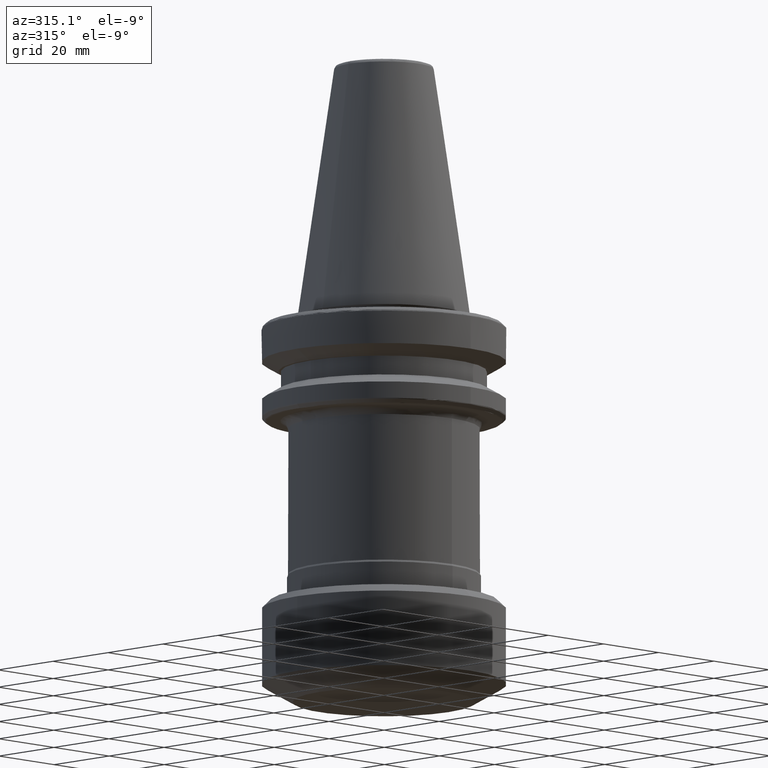
[diagram: clean part render]
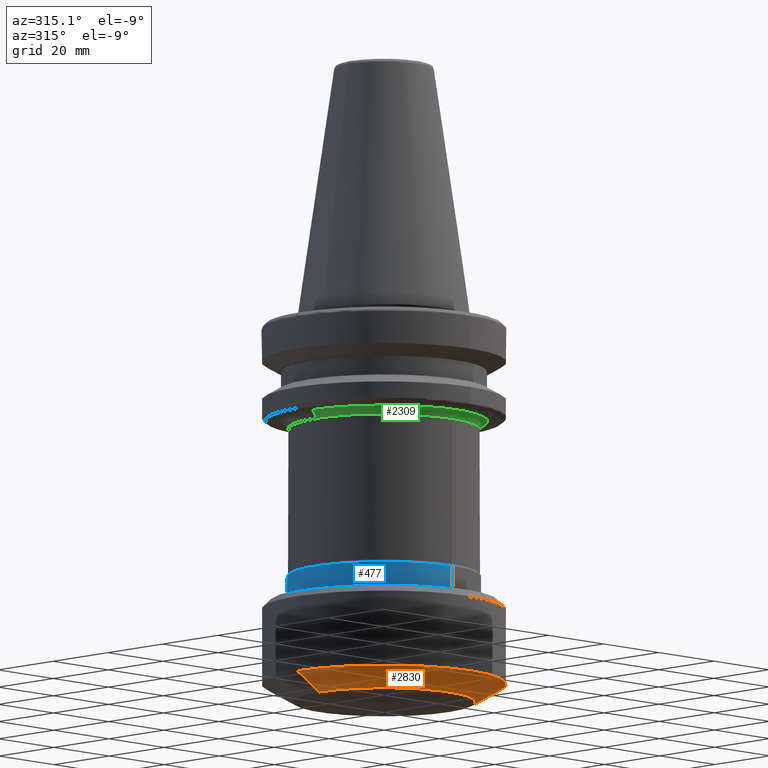
[diagram: same view with three faces highlighted in distinct colors, each labeled with its STEP entity id]
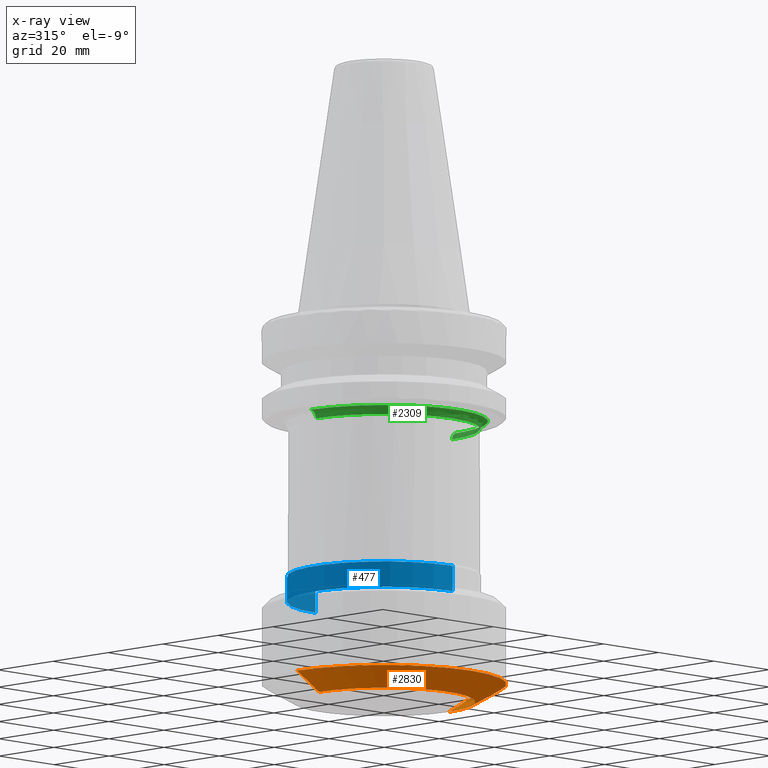
[diagram: x-ray of the same camera — body ghosted, the three highlighted faces saturated]
A machine part, auxiliary view with three faces highlighted in distinct colors.
The next image is the same camera in x-ray (body ghosted, the three faces saturated) — at least one of them is partly hidden behind the body in this view.
Their STEP definitions:

[orange] entity #2830 — the highlighted conical surface has half-angle 60 deg.
#155 = DIRECTION ( 'NONE',  ( 0.8660254037617976000, 0.0000000000000000000, 0.5000000000392153000 ) ) ;
#161 = VECTOR ( 'NONE', #1212, 1000.000000000000100 ) ;
#386 = DIRECTION ( 'NONE',  ( 1.000000000000000000, 0.0000000000000000000, 0.0000000000000000000 ) ) ;
#448 = EDGE_CURVE ( 'NONE', #1052, #3277, #2480, .T. ) ;
#502 = VERTEX_POINT ( 'NONE', #2284 ) ;
#597 = EDGE_CURVE ( 'NONE', #502, #1052, #2310, .T. ) ;
#681 = CIRCLE ( 'NONE', #1990, 23.49999999999985400 ) ;
#701 = CARTESIAN_POINT ( 'NONE',  ( 0.0000000000000000000, 0.0000000000000000000, -95.38119784599996400 ) ) ;
#844 = ORIENTED_EDGE ( 'NONE', *, *, #448, .F. ) ;
#856 = EDGE_LOOP ( 'NONE', ( #2403, #1516, #3264, #844 ) ) ;
#969 = DIRECTION ( 'NONE',  ( 1.000000000000000000, 0.0000000000000000000, -8.811293846231401400E-016 ) ) ;
#1048 = CARTESIAN_POINT ( 'NONE',  ( -31.50000000000000000, 3.857637417314162700E-015, -95.38119784599996400 ) ) ;
#1052 = VERTEX_POINT ( 'NONE', #1048 ) ;
#1150 = CARTESIAN_POINT ( 'NONE',  ( 23.49999999999985400, 0.0000000000000000000, -100.0000000000000900 ) ) ;
#1212 = DIRECTION ( 'NONE',  ( -0.8660254037617976000, 1.060575238697179600E-016, 0.5000000000392153000 ) ) ;
#1516 = ORIENTED_EDGE ( 'NONE', *, *, #1706, .F. ) ;
#1557 = DIRECTION ( 'NONE',  ( -0.0000000000000000000, 0.0000000000000000000, -1.000000000000000000 ) ) ;
#1706 = EDGE_CURVE ( 'NONE', #2201, #502, #681, .T. ) ;
#1757 = CARTESIAN_POINT ( 'NONE',  ( 31.50000000000000000, 0.0000000000000000000, -95.38119784599999200 ) ) ;
#1845 = AXIS2_PLACEMENT_3D ( 'NONE', #701, #2573, #969 ) ;
#1903 = CONICAL_SURFACE ( 'NONE', #3034, 23.50000000000000000, 1.047197551151315900 ) ;
#1990 = AXIS2_PLACEMENT_3D ( 'NONE', #3152, #1557, #3424 ) ;
#1999 = CARTESIAN_POINT ( 'NONE',  ( 0.0000000000000000000, 0.0000000000000000000, -100.0000000000000000 ) ) ;
#2030 = VECTOR ( 'NONE', #155, 1000.000000000000100 ) ;
#2201 = VERTEX_POINT ( 'NONE', #1150 ) ;
#2284 = CARTESIAN_POINT ( 'NONE',  ( -23.49999999999985400, 3.367778697655202000E-015, -100.0000000000000900 ) ) ;
#2296 = CARTESIAN_POINT ( 'NONE',  ( -23.50000000000000000, 2.877919977996280300E-015, -100.0000000000000000 ) ) ;
#2310 = LINE ( 'NONE', #2296, #161 ) ;
#2403 = ORIENTED_EDGE ( 'NONE', *, *, #597, .F. ) ;
#2480 = CIRCLE ( 'NONE', #1845, 31.50000000000000000 ) ;
#2573 = DIRECTION ( 'NONE',  ( 0.0000000000000000000, 0.0000000000000000000, 1.000000000000000000 ) ) ;
#2696 = FACE_OUTER_BOUND ( 'NONE', #856, .T. ) ;
#2735 = LINE ( 'NONE', #2829, #2030 ) ;
#2829 = CARTESIAN_POINT ( 'NONE',  ( 23.50000000000000000, 0.0000000000000000000, -100.0000000000000000 ) ) ;
#2830 = ADVANCED_FACE ( 'NONE', ( #2696 ), #1903, .T. ) ;
#3034 = AXIS2_PLACEMENT_3D ( 'NONE', #1999, #3325, #386 ) ;
#3152 = CARTESIAN_POINT ( 'NONE',  ( 0.0000000000000000000, 0.0000000000000000000, -100.0000000000000900 ) ) ;
#3264 = ORIENTED_EDGE ( 'NONE', *, *, #3291, .T. ) ;
#3277 = VERTEX_POINT ( 'NONE', #1757 ) ;
#3291 = EDGE_CURVE ( 'NONE', #2201, #3277, #2735, .T. ) ;
#3325 = DIRECTION ( 'NONE',  ( 0.0000000000000000000, -0.0000000000000000000, 1.000000000000000000 ) ) ;
#3424 = DIRECTION ( 'NONE',  ( 1.000000000000000000, 0.0000000000000000000, 0.0000000000000000000 ) ) ;

[blue] entity #477 — the highlighted cylindrical surface (partial cylindrical patch) has radius 24.95 mm, axis along (0, -0, 1).
#57 = ORIENTED_EDGE ( 'NONE', *, *, #519, .F. ) ;
#78 = VERTEX_POINT ( 'NONE', #522 ) ;
#116 = VERTEX_POINT ( 'NONE', #3363 ) ;
#165 = EDGE_LOOP ( 'NONE', ( #57, #2723, #1683, #2285 ) ) ;
#179 = DIRECTION ( 'NONE',  ( 0.0000000000000000000, -2.781119801165222400E-016, 1.000000000000000000 ) ) ;
#247 = CYLINDRICAL_SURFACE ( 'NONE', #2381, 24.94999999999999900 ) ;
#388 = CARTESIAN_POINT ( 'NONE',  ( 0.0000000000000000000, 0.0000000000000000000, -74.00000000000000000 ) ) ;
#477 = ADVANCED_FACE ( 'NONE', ( #1053 ), #247, .T. ) ;
#518 = VECTOR ( 'NONE', #179, 1000.000000000000000 ) ;
#519 = EDGE_CURVE ( 'NONE', #629, #78, #1766, .T. ) ;
#522 = CARTESIAN_POINT ( 'NONE',  ( 0.0000000000000000000, 24.95000000000000600, -67.40000000000000600 ) ) ;
#629 = VERTEX_POINT ( 'NONE', #2827 ) ;
#674 = CARTESIAN_POINT ( 'NONE',  ( 3.055493763872646400E-015, 24.94999999999999900, -73.99999999999998600 ) ) ;
#925 = DIRECTION ( 'NONE',  ( 0.0000000000000000000, -2.781119801165222400E-016, 1.000000000000000000 ) ) ;
#1012 = DIRECTION ( 'NONE',  ( 0.0000000000000000000, 0.0000000000000000000, 1.000000000000000000 ) ) ;
#1053 = FACE_OUTER_BOUND ( 'NONE', #165, .T. ) ;
#1200 = AXIS2_PLACEMENT_3D ( 'NONE', #2616, #1012, #2882 ) ;
#1498 = DIRECTION ( 'NONE',  ( 0.0000000000000000000, -2.781119801165222400E-016, 1.000000000000000000 ) ) ;
#1610 = CIRCLE ( 'NONE', #1200, 24.94999999999999900 ) ;
#1649 = AXIS2_PLACEMENT_3D ( 'NONE', #3090, #1498, #3367 ) ;
#1651 = CARTESIAN_POINT ( 'NONE',  ( 3.055493763872645600E-015, -24.94999999999999200, -67.40000000000000600 ) ) ;
#1682 = VECTOR ( 'NONE', #2543, 1000.000000000000000 ) ;
#1683 = ORIENTED_EDGE ( 'NONE', *, *, #3382, .T. ) ;
#1766 = LINE ( 'NONE', #674, #1682 ) ;
#1795 = CARTESIAN_POINT ( 'NONE',  ( 0.0000000000000000000, -24.94999999999999900, -74.00000000000001400 ) ) ;
#2024 = EDGE_CURVE ( 'NONE', #78, #3070, #1610, .T. ) ;
#2117 = CIRCLE ( 'NONE', #1649, 24.94999999999999900 ) ;
#2285 = ORIENTED_EDGE ( 'NONE', *, *, #2024, .F. ) ;
#2381 = AXIS2_PLACEMENT_3D ( 'NONE', #388, #925, #2798 ) ;
#2543 = DIRECTION ( 'NONE',  ( 0.0000000000000000000, -2.781119801165222400E-016, 1.000000000000000000 ) ) ;
#2616 = CARTESIAN_POINT ( 'NONE',  ( 0.0000000000000000000, 0.0000000000000000000, -67.40000000000000600 ) ) ;
#2723 = ORIENTED_EDGE ( 'NONE', *, *, #3274, .T. ) ;
#2798 = DIRECTION ( 'NONE',  ( 0.0000000000000000000, -1.000000000000000000, -5.562239602330443700E-016 ) ) ;
#2818 = LINE ( 'NONE', #1795, #518 ) ;
#2827 = CARTESIAN_POINT ( 'NONE',  ( 3.055493763872646400E-015, 24.94999999999999900, -73.99999999999998600 ) ) ;
#2882 = DIRECTION ( 'NONE',  ( 1.000000000000000000, 0.0000000000000000000, 0.0000000000000000000 ) ) ;
#3070 = VERTEX_POINT ( 'NONE', #1651 ) ;
#3090 = CARTESIAN_POINT ( 'NONE',  ( 0.0000000000000000000, -3.465656068258076000E-040, -74.00000000000000000 ) ) ;
#3274 = EDGE_CURVE ( 'NONE', #629, #116, #2117, .T. ) ;
#3363 = CARTESIAN_POINT ( 'NONE',  ( 0.0000000000000000000, -24.94999999999999900, -74.00000000000001400 ) ) ;
#3367 = DIRECTION ( 'NONE',  ( 0.0000000000000000000, -1.000000000000000000, -5.562239602330443700E-016 ) ) ;
#3382 = EDGE_CURVE ( 'NONE', #116, #3070, #2818, .T. ) ;

[green] entity #2309 — the highlighted face is a freeform B-spline surface patch.
#10 = CARTESIAN_POINT ( 'NONE',  ( -22.83188843468749600, -13.84180541923887200, -27.00000000000000400 ) ) ;
#18 = CARTESIAN_POINT ( 'NONE',  ( -19.74425438538377300, -17.97387078507863100, -27.00000000000000700 ) ) ;
#25 = CARTESIAN_POINT ( 'NONE',  ( -16.60575616717216400, -20.91826676193056400, -27.00000000000000400 ) ) ;
#42 = CARTESIAN_POINT ( 'NONE',  ( -12.09603268612626800, -23.80879423730624100, -26.99999999999999600 ) ) ;
#55 = CARTESIAN_POINT ( 'NONE',  ( -6.037531153287557300, -26.01428934749611300, -27.00000000000000700 ) ) ;
#66 = CARTESIAN_POINT ( 'NONE',  ( 3.871977625754107400, -26.42352794264500200, -26.99999999999999600 ) ) ;
#73 = DIRECTION ( 'NONE',  ( 1.000000000000000000, 0.0000000000000000000, -1.404634393503487500E-016 ) ) ;
#77 = CARTESIAN_POINT ( 'NONE',  ( 10.16754575502703000, -24.69400165317694700, -27.00000000000000400 ) ) ;
#90 = CARTESIAN_POINT ( 'NONE',  ( 15.14978156936643700, -21.98579330483130400, -27.00000000000000000 ) ) ;
#99 = CARTESIAN_POINT ( 'NONE',  ( 19.32335924339567900, -18.42614492273228800, -27.00000000000000000 ) ) ;
#107 = CARTESIAN_POINT ( 'NONE',  ( 21.62038938585631700, -15.67282823682382700, -27.00000000000000400 ) ) ;
#124 = CARTESIAN_POINT ( 'NONE',  ( 23.95473050748080400, -11.79243301000246500, -26.99999999999999300 ) ) ;
#139 = CARTESIAN_POINT ( 'NONE',  ( 25.82004015164631400, -6.831336894899664900, -27.00000000000000000 ) ) ;
#157 = CARTESIAN_POINT ( 'NONE',  ( 0.0000000000000000000, 0.0000000000000000000, -28.99999999999999600 ) ) ;
#158 = CARTESIAN_POINT ( 'NONE',  ( -25.53989247000000200, -51.07978493900000000, -26.87355915500000600 ) ) ;
#168 = CARTESIAN_POINT ( 'NONE',  ( 26.69999999725285300, 0.0000000000000000000, -26.99999999980891000 ) ) ;
#173 = CARTESIAN_POINT ( 'NONE',  ( 0.0000000000000000000, -24.70000000000001000, -28.99999999999999600 ) ) ;
#227 = CARTESIAN_POINT ( 'NONE',  ( 26.69999999725284900, 0.0000000000000000000, -26.99999999980891000 ) ) ;
#249 = VERTEX_POINT ( 'NONE', #858 ) ;
#259 = CARTESIAN_POINT ( 'NONE',  ( -25.93954141912851300, -6.342750819001659000, -27.00000000000001100 ) ) ;
#270 = CARTESIAN_POINT ( 'NONE',  ( -24.07220980210611900, -11.55087202150607200, -27.00000000000001100 ) ) ;
#280 = CARTESIAN_POINT ( 'NONE',  ( -22.24121875206387200, -14.78339483470190900, -27.00000000000000000 ) ) ;
#281 = EDGE_CURVE ( 'NONE', #3433, #3307, #2384, .T. ) ;
#294 = CARTESIAN_POINT ( 'NONE',  ( -19.64787877396398500, -18.07903828425784800, -26.99999999999998900 ) ) ;
#310 = CARTESIAN_POINT ( 'NONE',  ( -15.55922565467025200, -21.69856475913928800, -27.00000000000000700 ) ) ;
#320 = CARTESIAN_POINT ( 'NONE',  ( -10.53357342244319400, -24.53687678742186800, -27.00000000000000400 ) ) ;
#331 = CARTESIAN_POINT ( 'NONE',  ( -4.416080044130578300, -26.33374318387820500, -27.00000000000000400 ) ) ;
#351 = CARTESIAN_POINT ( 'NONE',  ( 5.633125976487207300, -26.10157744687295500, -27.00000000000000400 ) ) ;
#359 = CARTESIAN_POINT ( 'NONE',  ( 11.73826118423924200, -23.98390574944731000, -27.00000000000000400 ) ) ;
#366 = CARTESIAN_POINT ( 'NONE',  ( 15.61201897552832700, -21.66571250377349500, -26.99999999999999600 ) ) ;
#375 = CARTESIAN_POINT ( 'NONE',  ( 19.52789814954506700, -18.20856983034329000, -27.00000000000000000 ) ) ;
#387 = CARTESIAN_POINT ( 'NONE',  ( 22.41547768643702600, -14.50927771386338700, -26.99999999999999300 ) ) ;
#398 = CARTESIAN_POINT ( 'NONE',  ( 23.98962957493333900, -11.72127164584706800, -26.99999999999999600 ) ) ;
#409 = CARTESIAN_POINT ( 'NONE',  ( 26.28599738967106300, -4.704959320723297400, -27.00000000000000000 ) ) ;
#430 = CARTESIAN_POINT ( 'NONE',  ( -26.69999999725284900, 0.0000000000000000000, -26.99999999980891000 ) ) ;
#432 = DIRECTION ( 'NONE',  ( 1.000000000000000000, 0.0000000000000000000, -1.404634393503487500E-016 ) ) ;
#434 = CARTESIAN_POINT ( 'NONE',  ( 24.57355915500000200, 0.0000000000000000000, -27.83989247000000900 ) ) ;
#446 = CARTESIAN_POINT ( 'NONE',  ( 25.52842712506633300, 0.0000000000000000000, -27.00000000092553900 ) ) ;
#505 = EDGE_LOOP ( 'NONE', ( #3222, #1412, #2105, #675, #2986 ) ) ;
#528 = CARTESIAN_POINT ( 'NONE',  ( -26.67046460047270500, -1.481214954666920000, -26.99999999999999600 ) ) ;
#530 = AXIS2_PLACEMENT_3D ( 'NONE', #3296, #1695, #73 ) ;
#538 = CARTESIAN_POINT ( 'NONE',  ( -25.71294518819651400, -7.193532197126460300, -27.00000000000000700 ) ) ;
#544 = CARTESIAN_POINT ( 'NONE',  ( -24.02071922697954800, -11.65742568342157700, -27.00000000000001100 ) ) ;
#558 = CARTESIAN_POINT ( 'NONE',  ( -21.58608587407446000, -15.71468998763144300, -26.99999999999999300 ) ) ;
#569 = CARTESIAN_POINT ( 'NONE',  ( -19.28499051248561000, -18.47181097991421700, -26.99999999999999600 ) ) ;
#577 = CARTESIAN_POINT ( 'NONE',  ( -15.30507312459223700, -21.87803768290776000, -26.99999999999999300 ) ) ;
#589 = CARTESIAN_POINT ( 'NONE',  ( -9.919636181477338600, -24.78901388045353100, -26.99999999999999300 ) ) ;
#596 = CARTESIAN_POINT ( 'NONE',  ( -25.52842712506634700, 0.0000000000000000000, -27.00000000092554200 ) ) ;
#604 = CARTESIAN_POINT ( 'NONE',  ( -3.600382734089310900, -26.45759327876016100, -27.00000000000000400 ) ) ;
#614 = CARTESIAN_POINT ( 'NONE',  ( 6.304548027268420000, -25.94535920004007000, -26.99999999999999600 ) ) ;
#622 = CARTESIAN_POINT ( 'NONE',  ( 12.32970037413819300, -23.68275504501384200, -27.00000000000000400 ) ) ;
#635 = CARTESIAN_POINT ( 'NONE',  ( 16.89203020707207500, -20.67990503728588800, -27.00000000000000000 ) ) ;
#650 = CARTESIAN_POINT ( 'NONE',  ( 19.58982714367119000, -18.14192538854870000, -26.99999999999999300 ) ) ;
#658 = CARTESIAN_POINT ( 'NONE',  ( 22.71865168722651200, -14.02704246032271500, -27.00000000000000400 ) ) ;
#670 = CARTESIAN_POINT ( 'NONE',  ( 24.78474373718560000, -9.980787809134172400, -27.00000000000000000 ) ) ;
#675 = ORIENTED_EDGE ( 'NONE', *, *, #2623, .T. ) ;
#686 = CARTESIAN_POINT ( 'NONE',  ( 26.42334099754585400, -3.835297575253493500, -27.00000000000001100 ) ) ;
#703 = CARTESIAN_POINT ( 'NONE',  ( -24.57355915499999500, -49.14711830900001400, -27.83989247000000200 ) ) ;
#713 = CARTESIAN_POINT ( 'NONE',  ( 24.69999999992037900, -2.217902622189706000E-009, -28.99999999972065400 ) ) ;
#764 = CIRCLE ( 'NONE', #530, 24.69999999999999900 ) ;
#791 = CARTESIAN_POINT ( 'NONE',  ( -26.52832549649731300, -3.029323024883941800, -27.00000000000000000 ) ) ;
#803 = CARTESIAN_POINT ( 'NONE',  ( -25.65249003576095200, -7.405435829870301100, -27.00000000000000700 ) ) ;
#816 = CARTESIAN_POINT ( 'NONE',  ( -23.81973575274264500, -12.06979051109146700, -26.99999999999999600 ) ) ;
#827 = CARTESIAN_POINT ( 'NONE',  ( -21.42497449336974600, -15.93302007983261200, -26.99999999999999300 ) ) ;
#828 =( BOUNDED_SURFACE ( )  B_SPLINE_SURFACE ( 3, 3, ( 
 ( #1490, #2832, #3096, #1502 ),
 ( #3369, #1775, #158, #2048 ),
 ( #434, #2312, #703, #2575 ),
 ( #973, #2840, #1242, #3111 ) ),
 .UNSPECIFIED., .F., .F., .F. ) 
 B_SPLINE_SURFACE_WITH_KNOTS ( ( 4, 4 ),
 ( 4, 4 ),
 ( 0.0000000000000000000, 1.000000000000000000 ),
 ( 0.0000000000000000000, 1.000000000000000000 ),
 .UNSPECIFIED. ) 
 GEOMETRIC_REPRESENTATION_ITEM ( )  RATIONAL_B_SPLINE_SURFACE ( (
 ( 1.000000000000000000, 0.3333333333333330400, 0.3333333333333330400, 1.000000000000000000),
 ( 0.7553208711179720800, 0.2517736237059909900, 0.2517736237059909900, 0.7553208711179720800),
 ( 0.7553208711179720800, 0.2517736237059909900, 0.2517736237059909900, 0.7553208711179720800),
 ( 1.000000000000000000, 0.3333333333333330400, 0.3333333333333330400, 1.000000000000000000) ) ) 
 REPRESENTATION_ITEM ( '' )  SURFACE ( )  );
#837 = CARTESIAN_POINT ( 'NONE',  ( -18.17855880612488700, -19.55838592208142800, -27.00000000000000400 ) ) ;
#853 = CARTESIAN_POINT ( 'NONE',  ( -14.77885467077010200, -22.24279641664060100, -27.00000000000000000 ) ) ;
#858 = CARTESIAN_POINT ( 'NONE',  ( 24.69999999992037900, -2.217902622189706000E-009, -28.99999999972065400 ) ) ;
#864 = CARTESIAN_POINT ( 'NONE',  ( -9.735755717749258400, -24.86181009183904000, -26.99999999999999600 ) ) ;
#875 = CARTESIAN_POINT ( 'NONE',  ( -1.112134048861036100, -26.69997708992877600, -27.00000000000000400 ) ) ;
#886 = CARTESIAN_POINT ( 'NONE',  ( 7.098925123615184200, -25.74472879786169000, -27.00000000000000400 ) ) ;
#888 = VERTEX_POINT ( 'NONE', #227 ) ;
#897 = CARTESIAN_POINT ( 'NONE',  ( 12.50781864806024200, -23.58916196993728000, -27.00000000000000700 ) ) ;
#905 = CARTESIAN_POINT ( 'NONE',  ( 17.39152146807813200, -20.25911361085049500, -27.00000000000000400 ) ) ;
#910 = CARTESIAN_POINT ( 'NONE',  ( 20.36992191675033900, -17.27199074151300100, -27.00000000000000400 ) ) ;
#924 = CARTESIAN_POINT ( 'NONE',  ( 22.78957695939693600, -13.91135754487730500, -27.00000000000000400 ) ) ;
#939 = CARTESIAN_POINT ( 'NONE',  ( 25.43982538430875800, -8.109844666364592700, -27.00000000000000400 ) ) ;
#950 = CARTESIAN_POINT ( 'NONE',  ( 26.45387623657019200, -3.617064728456505800, -27.00000000000000000 ) ) ;
#973 = CARTESIAN_POINT ( 'NONE',  ( 24.70999166900000400, 0.0000000000000000000, -29.19966683299999800 ) ) ;
#1051 = CARTESIAN_POINT ( 'NONE',  ( -26.69999999870135500, -0.5932479892749552600, -27.00000000000000700 ) ) ;
#1066 = CARTESIAN_POINT ( 'NONE',  ( -26.48067659232377100, -3.415568687185651400, -27.00000000000000400 ) ) ;
#1075 = CARTESIAN_POINT ( 'NONE',  ( -25.63787241930170100, -7.455842578402745800, -27.00000000000000400 ) ) ;
#1083 = CARTESIAN_POINT ( 'NONE',  ( -23.18461979307833000, -13.24529069871782700, -27.00000000000000000 ) ) ;
#1096 = CARTESIAN_POINT ( 'NONE',  ( -21.37710854211843900, -15.99718768298889800, -26.99999999999999600 ) ) ;
#1107 = CARTESIAN_POINT ( 'NONE',  ( -17.71323787020932300, -19.97842244723228700, -26.99999999999999600 ) ) ;
#1119 = CARTESIAN_POINT ( 'NONE',  ( -13.35476716597898800, -23.12266208060040300, -27.00000000000000000 ) ) ;
#1129 = CARTESIAN_POINT ( 'NONE',  ( -8.398694255067498600, -25.35489092173355300, -27.00000000000000000 ) ) ;
#1146 = CARTESIAN_POINT ( 'NONE',  ( 1.388681495067820100, -26.67404728190713900, -27.00000000000000700 ) ) ;
#1157 = CARTESIAN_POINT ( 'NONE',  ( 8.781272461345757600, -25.21724791179096000, -27.00000000000000400 ) ) ;
#1166 = CARTESIAN_POINT ( 'NONE',  ( 13.69089478985997500, -22.93287119849595300, -27.00000000000001100 ) ) ;
#1176 = CARTESIAN_POINT ( 'NONE',  ( 17.50922288061923000, -20.15733189877921600, -27.00000000000000000 ) ) ;
#1192 = CARTESIAN_POINT ( 'NONE',  ( 21.11833673962391700, -16.33795086713596600, -26.99999999999999600 ) ) ;
#1201 = CARTESIAN_POINT ( 'NONE',  ( 23.03144003371135500, -13.51341731996119800, -26.99999999999998900 ) ) ;
#1211 = CARTESIAN_POINT ( 'NONE',  ( 25.58518381082638300, -7.634939148536393100, -26.99999999999999600 ) ) ;
#1223 = CARTESIAN_POINT ( 'NONE',  ( 26.46092331803798500, -3.565056520193907300, -27.00000000000000000 ) ) ;
#1242 = CARTESIAN_POINT ( 'NONE',  ( -24.70999166900000800, -49.41998333900000500, -29.19966683299999800 ) ) ;
#1322 = EDGE_CURVE ( 'NONE', #1933, #249, #3233, .T. ) ;
#1330 = CARTESIAN_POINT ( 'NONE',  ( -26.46861534327496900, -3.507485740935024900, -27.00000000000000700 ) ) ;
#1332 = AXIS2_PLACEMENT_3D ( 'NONE', #157, #2047, #432 ) ;
#1339 = CARTESIAN_POINT ( 'NONE',  ( -25.41997621330546400, -8.202990554725840200, -26.99999999999999600 ) ) ;
#1356 = CARTESIAN_POINT ( 'NONE',  ( -22.91088359555426000, -13.71079651808696000, -27.00000000000000400 ) ) ;
#1366 = CARTESIAN_POINT ( 'NONE',  ( -20.66210833154952200, -16.92136781078658800, -27.00000000000000000 ) ) ;
#1367 = EDGE_CURVE ( 'NONE', #888, #249, #3184, .T. ) ;
#1376 = CARTESIAN_POINT ( 'NONE',  ( -17.60114787068300800, -20.07711218168709200, -26.99999999999999300 ) ) ;
#1390 = CARTESIAN_POINT ( 'NONE',  ( -12.79178671367362700, -23.43638883283802000, -27.00000000000000700 ) ) ;
#1403 = CARTESIAN_POINT ( 'NONE',  ( -7.097661964060233000, -25.73969769331004200, -26.99999999999999300 ) ) ;
#1412 = ORIENTED_EDGE ( 'NONE', *, *, #1794, .F. ) ;
#1416 = CARTESIAN_POINT ( 'NONE',  ( 2.772099839688975600, -26.55607727086043800, -27.00000000000000000 ) ) ;
#1426 = CARTESIAN_POINT ( 'NONE',  ( 9.418682932394274200, -24.98365509707458900, -27.00000000000000700 ) ) ;
#1440 = CARTESIAN_POINT ( 'NONE',  ( 14.82991457563931600, -22.20344332182594000, -27.00000000000000700 ) ) ;
#1450 = CARTESIAN_POINT ( 'NONE',  ( 17.91606702920541100, -19.80235399135658600, -26.99999999999999300 ) ) ;
#1457 = CARTESIAN_POINT ( 'NONE',  ( 21.29133679911101100, -16.11116741999354600, -27.00000000000000400 ) ) ;
#1467 = CARTESIAN_POINT ( 'NONE',  ( 23.67698462913455500, -12.34361171631821500, -27.00000000000000000 ) ) ;
#1485 = CARTESIAN_POINT ( 'NONE',  ( 25.61870431483684400, -7.521442481558156400, -26.99999999999999600 ) ) ;
#1490 = CARTESIAN_POINT ( 'NONE',  ( 26.89966683299999800, 0.0000000000000000000, -27.00999166900000500 ) ) ;
#1493 = CARTESIAN_POINT ( 'NONE',  ( 26.62123893675829600, -2.368253240940139600, -26.99999999999999600 ) ) ;
#1502 = CARTESIAN_POINT ( 'NONE',  ( -26.89966683299999800, 0.0000000000000000000, -27.00999166900000500 ) ) ;
#1607 = CARTESIAN_POINT ( 'NONE',  ( -26.46510944029473900, -3.533847993705038900, -27.00000000000000400 ) ) ;
#1618 = CARTESIAN_POINT ( 'NONE',  ( -24.55471878039188400, -10.49817510308710500, -27.00000000000000000 ) ) ;
#1627 = CARTESIAN_POINT ( 'NONE',  ( -22.84449653189540200, -13.82098376220642400, -27.00000000000000700 ) ) ;
#1629 = B_SPLINE_CURVE_WITH_KNOTS ( 'NONE', 3,
 ( #1870, #1051, #528, #2406, #791, #2667, #1066, #2933, #1330, #3198, #1607, #3462, #1879, #259, #2139, #538, #2415, #803, #2675, #1075, #2947, #1339, #3209, #1618, #3472, #1885, #270, #2155, #544, #2424, #816, #2689, #1083, #2955, #1356, #3219, #1627, #10, #1897, #280, #2164, #558, #2432, #827, #2704, #1096, #2964, #1366, #3234, #1635, #18, #1911, #294, #2174, #569, #2448, #837, #2711, #1107, #2974, #1376, #3247, #1647, #25, #1918, #310, #2185, #577, #2458, #853, #2718, #1119, #2988, #1390, #3258, #1659, #42, #1929, #320, #2203, #589, #2469, #864, #2734, #1129, #3001, #1403, #3272, #1670, #55, #1947, #331, #2216, #604, #2483, #875, #2746, #1146, #3011, #1416, #3287, #1685, #66, #1961, #351, #2227, #614, #2496, #886, #2756, #1157, #3023, #1426, #3298, #1697, #77, #1969, #359, #2240, #622, #2505, #897, #2767, #1166, #3033, #1440, #3306, #1705, #90, #1981, #366, #2248, #635, #2514, #905, #2778, #1176, #3043, #1450, #3316, #1713, #99, #1992, #375, #2256, #650, #2525, #910, #2787, #1192, #3052, #1457, #3326, #1728, #107, #2001, #387, #2265, #658, #2535, #924, #2797, #1201, #3068, #1467, #3337, #1743, #124, #2011, #398, #2283, #670, #2542, #939, #2815, #1211, #3078, #1485, #3350, #1755, #139, #2027, #409, #2294, #686, #2554, #950, #2826, #1223, #3088, #1493, #3364, #1764 ),
 .UNSPECIFIED., .F., .F.,
 ( 4, 1, 1, 1, 1, 1, 1, 2, 2, 1, 1, 1, 1, 1, 1, 2, 2, 1, 1, 1, 1, 1, 2, 2, 1, 1, 1, 1, 2, 2, 1, 1, 1, 1, 2, 2, 1, 1, 1, 1, 2, 2, 1, 1, 1, 1, 2, 2, 1, 1, 1, 2, 2, 1, 1, 1, 2, 2, 1, 1, 1, 2, 2, 1, 1, 2, 2, 1, 2, 2, 2, 1, 1, 2, 2, 1, 1, 2, 2, 1, 1, 1, 2, 2, 1, 1, 1, 2, 2, 1, 1, 1, 1, 2, 2, 1, 1, 1, 1, 2, 2, 1, 1, 1, 1, 2, 2, 1, 1, 1, 1, 2, 2, 1, 1, 1, 1, 2, 2, 1, 1, 1, 1, 2, 2, 1, 1, 1, 1, 1, 1, 2, 2, 1, 1, 1, 1, 1, 1, 2, 2, 4 ),
 ( 0.0000000000000000000, 0.03125000000000292800, 0.04687500000000439200, 0.05468750000000514200, 0.05859375000000549600, 0.06054687500000568300, 0.06152343750000575900, 0.06201171875000579400, 0.06250000000000582900, 0.09375000000000828500, 0.1093750000000094600, 0.1171875000000100500, 0.1210937500000103300, 0.1230468750000104900, 0.1240234375000105700, 0.1245117187500106400, 0.1250000000000106900, 0.1562500000000161300, 0.1718750000000187900, 0.1796875000000201500, 0.1835937500000208400, 0.1855468750000212100, 0.1865234375000213400, 0.1875000000000214600, 0.2031250000000235100, 0.2109375000000244800, 0.2148437500000249800, 0.2167968750000252600, 0.2177734375000253400, 0.2187500000000254500, 0.2343750000000261700, 0.2421875000000265600, 0.2460937500000267600, 0.2480468750000267800, 0.2490234375000268400, 0.2500000000000268700, 0.2656250000000269800, 0.2734375000000269800, 0.2773437500000269200, 0.2792968750000268700, 0.2802734375000269200, 0.2812500000000269800, 0.2968750000000276400, 0.3046875000000279200, 0.3085937500000280900, 0.3105468750000281400, 0.3115234375000281400, 0.3125000000000280900, 0.3281250000000275300, 0.3359375000000272600, 0.3398437500000271400, 0.3417968750000270900, 0.3437500000000270300, 0.3593750000000267000, 0.3671875000000265300, 0.3710937500000263700, 0.3730468750000263700, 0.3750000000000263100, 0.3906250000000255400, 0.3984375000000252000, 0.4023437500000250400, 0.4042968750000249200, 0.4062500000000248700, 0.4218750000000242600, 0.4296875000000239800, 0.4335937500000238700, 0.4375000000000237000, 0.4531250000000231500, 0.4609375000000228700, 0.4687500000000225900, 0.5000000000000215400, 0.5156250000000210900, 0.5234375000000208700, 0.5273437500000206500, 0.5312500000000204300, 0.5468750000000199800, 0.5546875000000196500, 0.5585937500000194300, 0.5625000000000193200, 0.5781250000000186500, 0.5859375000000183200, 0.5898437500000181000, 0.5917968750000179900, 0.5937500000000179900, 0.6093750000000171000, 0.6171875000000167600, 0.6210937500000165400, 0.6230468750000165400, 0.6250000000000164300, 0.6406250000000156500, 0.6484375000000152100, 0.6523437500000151000, 0.6542968750000148800, 0.6552734375000148800, 0.6562500000000148800, 0.6718750000000147700, 0.6796875000000147700, 0.6835937500000146500, 0.6855468750000146500, 0.6865234375000145400, 0.6875000000000145400, 0.7031250000000121000, 0.7109375000000108800, 0.7148437500000102100, 0.7167968750000098800, 0.7177734375000097700, 0.7187500000000096600, 0.7343750000000068800, 0.7421875000000055500, 0.7460937500000050000, 0.7480468750000046600, 0.7490234375000045500, 0.7500000000000044400, 0.7656250000000022200, 0.7734375000000011100, 0.7773437500000005600, 0.7792968750000003300, 0.7802734375000002200, 0.7812500000000000000, 0.7968749999999988900, 0.8046874999999982200, 0.8085937499999978900, 0.8105468749999977800, 0.8115234374999976700, 0.8124999999999975600, 0.8437499999999964500, 0.8593749999999958900, 0.8671874999999956700, 0.8710937499999954500, 0.8730468749999954500, 0.8740234374999954500, 0.8745117187499954500, 0.8749999999999954500, 0.9062499999999965600, 0.9218749999999971100, 0.9296874999999974500, 0.9335937499999975600, 0.9355468749999976700, 0.9365234374999976700, 0.9370117187499977800, 0.9374999999999977800, 1.000000000000000000 ),
 .UNSPECIFIED. ) ;
#1635 = CARTESIAN_POINT ( 'NONE',  ( -19.87834042731262600, -17.82594677750840600, -27.00000000000000000 ) ) ;
#1647 = CARTESIAN_POINT ( 'NONE',  ( -17.18116807442728700, -20.44372087600938300, -27.00000000000000000 ) ) ;
#1659 = CARTESIAN_POINT ( 'NONE',  ( -12.62329003119375600, -23.52757718999308200, -26.99999999999999600 ) ) ;
#1662 = CARTESIAN_POINT ( 'NONE',  ( -24.70000000092554200, 0.0000000000000000000, -27.82842712506634400 ) ) ;
#1670 = CARTESIAN_POINT ( 'NONE',  ( -6.706001826663144700, -25.84450458506554000, -27.00000000000000400 ) ) ;
#1685 = CARTESIAN_POINT ( 'NONE',  ( 3.187647616705657800, -26.50939038671527100, -27.00000000000000400 ) ) ;
#1695 = DIRECTION ( 'NONE',  ( 0.0000000000000000000, 0.0000000000000000000, 1.000000000000000000 ) ) ;
#1697 = CARTESIAN_POINT ( 'NONE',  ( 9.610566214054630400, -24.91046677350058000, -27.00000000000000700 ) ) ;
#1705 = CARTESIAN_POINT ( 'NONE',  ( 15.09662588496527200, -22.02232641903238200, -27.00000000000000700 ) ) ;
#1713 = CARTESIAN_POINT ( 'NONE',  ( 19.03365899558744800, -18.72726123978111100, -27.00000000000000400 ) ) ;
#1728 = CARTESIAN_POINT ( 'NONE',  ( 21.34372566228014300, -16.04169823460003700, -27.00000000000000400 ) ) ;
#1743 = CARTESIAN_POINT ( 'NONE',  ( 23.92060814090481800, -11.86166278569708900, -27.00000000000000000 ) ) ;
#1755 = CARTESIAN_POINT ( 'NONE',  ( 25.62906187136435300, -7.486072860750230300, -26.99999999999999300 ) ) ;
#1764 = CARTESIAN_POINT ( 'NONE',  ( 26.69999999725284900, 0.0000000000000000000, -26.99999999980891000 ) ) ;
#1775 = CARTESIAN_POINT ( 'NONE',  ( 25.53989247000000200, -51.07978493900000000, -26.87355915500000600 ) ) ;
#1794 = EDGE_CURVE ( 'NONE', #3307, #888, #1629, .T. ) ;
#1870 = CARTESIAN_POINT ( 'NONE',  ( -26.69999999725284900, 0.0000000000000000000, -26.99999999980891000 ) ) ;
#1879 = CARTESIAN_POINT ( 'NONE',  ( -26.20377793977668200, -5.200493717485432700, -27.00000000000000000 ) ) ;
#1885 = CARTESIAN_POINT ( 'NONE',  ( -24.14359961807139900, -11.40142971942919700, -27.00000000000000000 ) ) ;
#1897 = CARTESIAN_POINT ( 'NONE',  ( -22.59245564927855600, -14.23586105837137300, -26.99999999999998900 ) ) ;
#1899 = FACE_OUTER_BOUND ( 'NONE', #505, .T. ) ;
#1911 = CARTESIAN_POINT ( 'NONE',  ( -19.68647136209789000, -18.03700604973166600, -27.00000000000000000 ) ) ;
#1918 = CARTESIAN_POINT ( 'NONE',  ( -15.91183674691425400, -21.44324231275098200, -26.99999999999999300 ) ) ;
#1929 = CARTESIAN_POINT ( 'NONE',  ( -11.38299615791166600, -24.16222121445849400, -27.00000000000000000 ) ) ;
#1933 = VERTEX_POINT ( 'NONE', #173 ) ;
#1947 = CARTESIAN_POINT ( 'NONE',  ( -5.230474490078120400, -26.19287974999813800, -26.99999999999999600 ) ) ;
#1961 = CARTESIAN_POINT ( 'NONE',  ( 4.688549890367252000, -26.29529093115914100, -27.00000000000000000 ) ) ;
#1969 = CARTESIAN_POINT ( 'NONE',  ( 10.90039708051158300, -24.38374262735104400, -27.00000000000000000 ) ) ;
#1981 = CARTESIAN_POINT ( 'NONE',  ( 15.17727372427585700, -21.96682268299669300, -27.00000000000000700 ) ) ;
#1992 = CARTESIAN_POINT ( 'NONE',  ( 19.46675468069148700, -18.27406988929666200, -26.99999999999999600 ) ) ;
#2001 = CARTESIAN_POINT ( 'NONE',  ( 21.99790694530670600, -15.14307256027421100, -27.00000000000000400 ) ) ;
#2011 = CARTESIAN_POINT ( 'NONE',  ( 23.97741389546019500, -11.74624364254290000, -27.00000000000000400 ) ) ;
#2027 = CARTESIAN_POINT ( 'NONE',  ( 26.06503486808093200, -5.856370539740146000, -27.00000000000000000 ) ) ;
#2047 = DIRECTION ( 'NONE',  ( 0.0000000000000000000, 0.0000000000000000000, 1.000000000000000000 ) ) ;
#2048 = CARTESIAN_POINT ( 'NONE',  ( -25.53989247000000200, 0.0000000000000000000, -26.87355915500000200 ) ) ;
#2105 = ORIENTED_EDGE ( 'NONE', *, *, #281, .F. ) ;
#2139 = CARTESIAN_POINT ( 'NONE',  ( -25.79118382140678600, -6.910501399466981300, -26.99999999999999300 ) ) ;
#2155 = CARTESIAN_POINT ( 'NONE',  ( -24.04135059934338500, -11.61481768968370100, -27.00000000000000000 ) ) ;
#2164 = CARTESIAN_POINT ( 'NONE',  ( -21.80831762462938200, -15.40681912290720300, -27.00000000000000000 ) ) ;
#2174 = CARTESIAN_POINT ( 'NONE',  ( -19.62944219031693600, -18.09905689504562100, -26.99999999999999600 ) ) ;
#2175 = CARTESIAN_POINT ( 'NONE',  ( -24.69999999992037900, -7.599082026493020500E-009, -28.99999999972065700 ) ) ;
#2185 = CARTESIAN_POINT ( 'NONE',  ( -15.40689560468387900, -21.80645323708671800, -27.00000000000000400 ) ) ;
#2203 = CARTESIAN_POINT ( 'NONE',  ( -10.10447535823777600, -24.71478559880831200, -26.99999999999999600 ) ) ;
#2216 = CARTESIAN_POINT ( 'NONE',  ( -3.871519795112647900, -26.41926836899338900, -27.00000000000001100 ) ) ;
#2227 = CARTESIAN_POINT ( 'NONE',  ( 6.036210394268185700, -26.00910660270330900, -26.99999999999999600 ) ) ;
#2240 = CARTESIAN_POINT ( 'NONE',  ( 12.15291095876867500, -23.77452030688538900, -27.00000000000000700 ) ) ;
#2248 = CARTESIAN_POINT ( 'NONE',  ( 16.21306265245720000, -21.22408014646190100, -26.99999999999998900 ) ) ;
#2256 = CARTESIAN_POINT ( 'NONE',  ( 19.56859119132324000, -18.16483089223573400, -27.00000000000000400 ) ) ;
#2265 = CARTESIAN_POINT ( 'NONE',  ( 22.61854645411175500, -14.18844365138223700, -27.00000000000000700 ) ) ;
#2283 = CARTESIAN_POINT ( 'NONE',  ( 24.33185356361145000, -11.01930731931832400, -27.00000000000000400 ) ) ;
#2294 = CARTESIAN_POINT ( 'NONE',  ( 26.38026248857024200, -4.125766093382207300, -27.00000000000000000 ) ) ;
#2309 = ADVANCED_FACE ( 'NONE', ( #1899 ), #828, .F. ) ;
#2312 = CARTESIAN_POINT ( 'NONE',  ( 24.57355915499999500, -49.14711830900001400, -27.83989247000000200 ) ) ;
#2323 = CARTESIAN_POINT ( 'NONE',  ( 24.70000000092554200, 0.0000000000000000000, -27.82842712506635200 ) ) ;
#2384 =( BOUNDED_CURVE ( )  B_SPLINE_CURVE ( 3, ( #3261, #1662, #596, #2472 ),
 .UNSPECIFIED., .F., .T. ) 
 B_SPLINE_CURVE_WITH_KNOTS ( ( 4, 4 ),
 ( 0.06314145699999865200, 0.9368585430000001500 ),
 .UNSPECIFIED. ) 
 CURVE ( )  GEOMETRIC_REPRESENTATION_ITEM ( )  RATIONAL_B_SPLINE_CURVE ( ( 0.9565783021659939300, 0.7697947703959743300, 0.7697947703959739900, 0.9565783021659932700 ) ) 
 REPRESENTATION_ITEM ( '' )  );
#2406 = CARTESIAN_POINT ( 'NONE',  ( -26.58431968897246700, -2.513842631880064600, -27.00000000000000700 ) ) ;
#2415 = CARTESIAN_POINT ( 'NONE',  ( -25.67281091300402100, -7.334836472812903600, -26.99999999999999300 ) ) ;
#2424 = CARTESIAN_POINT ( 'NONE',  ( -24.01126651421332200, -11.67688809261970200, -27.00000000000000700 ) ) ;
#2432 = CARTESIAN_POINT ( 'NONE',  ( -21.47352470208757300, -15.86766510014895800, -27.00000000000000400 ) ) ;
#2448 = CARTESIAN_POINT ( 'NONE',  ( -18.78522115863756900, -18.98436335410180900, -27.00000000000000000 ) ) ;
#2458 = CARTESIAN_POINT ( 'NONE',  ( -15.25584601229695500, -21.91239955737200500, -26.99999999999998900 ) ) ;
#2469 = CARTESIAN_POINT ( 'NONE',  ( -9.796201173328896100, -24.83805087892675400, -26.99999999999999300 ) ) ;
#2472 = CARTESIAN_POINT ( 'NONE',  ( -26.69999999725284900, 0.0000000000000000000, -26.99999999980891000 ) ) ;
#2483 = CARTESIAN_POINT ( 'NONE',  ( -2.221037156219467500, -26.63071637446548200, -26.99999999999999600 ) ) ;
#2496 = CARTESIAN_POINT ( 'NONE',  ( 6.440653334081236600, -25.91189472247415200, -27.00000000000000400 ) ) ;
#2505 = CARTESIAN_POINT ( 'NONE',  ( 12.44735606641623200, -23.62112739407042700, -27.00000000000000000 ) ) ;
#2514 = CARTESIAN_POINT ( 'NONE',  ( 17.22595146726231300, -20.40058314295307400, -27.00000000000000000 ) ) ;
#2525 = CARTESIAN_POINT ( 'NONE',  ( 19.91883125881766100, -17.78591508386492800, -26.99999999999999600 ) ) ;
#2535 = CARTESIAN_POINT ( 'NONE',  ( 22.76124768340655500, -13.95765962990743600, -27.00000000000000000 ) ) ;
#2542 = CARTESIAN_POINT ( 'NONE',  ( 25.23455780256595900, -8.738590856806565600, -27.00000000000000000 ) ) ;
#2554 = CARTESIAN_POINT ( 'NONE',  ( 26.44386674191516900, -3.689845340074593000, -27.00000000000000700 ) ) ;
#2575 = CARTESIAN_POINT ( 'NONE',  ( -24.57355915500000200, 0.0000000000000000000, -27.83989247000000900 ) ) ;
#2623 = EDGE_CURVE ( 'NONE', #3433, #1933, #764, .T. ) ;
#2667 = CARTESIAN_POINT ( 'NONE',  ( -26.49709796607849200, -3.286854859985197700, -26.99999999999999600 ) ) ;
#2675 = CARTESIAN_POINT ( 'NONE',  ( -25.64372671558959700, -7.435681387012215800, -27.00000000000000000 ) ) ;
#2689 = CARTESIAN_POINT ( 'NONE',  ( -23.53676308747014500, -12.61775654010966700, -27.00000000000000000 ) ) ;
#2704 = CARTESIAN_POINT ( 'NONE',  ( -21.39253886390505200, -15.97654433677198700, -27.00000000000000400 ) ) ;
#2711 = CARTESIAN_POINT ( 'NONE',  ( -17.86932810327936500, -19.83940840559474200, -27.00000000000000000 ) ) ;
#2718 = CARTESIAN_POINT ( 'NONE',  ( -14.13109280650955300, -22.66427514062013800, -26.99999999999999300 ) ) ;
#2734 = CARTESIAN_POINT ( 'NONE',  ( -9.166029725469965000, -25.08325510646921300, -26.99999999999999300 ) ) ;
#2746 = CARTESIAN_POINT ( 'NONE',  ( 0.5560670244305181400, -26.70001145362746100, -27.00000000000000000 ) ) ;
#2756 = CARTESIAN_POINT ( 'NONE',  ( 7.881406339551829500, -25.52042343758332900, -27.00000000000000000 ) ) ;
#2767 = CARTESIAN_POINT ( 'NONE',  ( 13.01980375119449500, -23.31611599775275000, -26.99999999999999600 ) ) ;
#2778 = CARTESIAN_POINT ( 'NONE',  ( 17.46218204786790900, -20.19809625746304200, -27.00000000000000000 ) ) ;
#2787 = CARTESIAN_POINT ( 'NONE',  ( 20.87276930614306300, -16.65259961338174600, -26.99999999999999300 ) ) ;
#2797 = CARTESIAN_POINT ( 'NONE',  ( 22.80445191066045400, -13.88695815288950700, -27.00000000000000400 ) ) ;
#2815 = CARTESIAN_POINT ( 'NONE',  ( 25.53754931244331800, -7.793559642574047400, -26.99999999999999300 ) ) ;
#2826 = CARTESIAN_POINT ( 'NONE',  ( 26.45811172480885500, -3.585861360471194600, -27.00000000000000000 ) ) ;
#2832 = CARTESIAN_POINT ( 'NONE',  ( 26.89966683299999800, -53.79933366700000600, -27.00999166900000100 ) ) ;
#2840 = CARTESIAN_POINT ( 'NONE',  ( 24.70999166900000800, -49.41998333900000500, -29.19966683299999800 ) ) ;
#2933 = CARTESIAN_POINT ( 'NONE',  ( -26.47226400331005500, -3.479912578198339500, -27.00000000000000000 ) ) ;
#2947 = CARTESIAN_POINT ( 'NONE',  ( -25.63531287040092700, -7.464640772315443800, -27.00000000000000700 ) ) ;
#2955 = CARTESIAN_POINT ( 'NONE',  ( -23.00304601632230800, -13.55611789254363100, -27.00000000000000000 ) ) ;
#2964 = CARTESIAN_POINT ( 'NONE',  ( -21.08626330844349200, -16.38499706260212100, -27.00000000000000700 ) ) ;
#2974 = CARTESIAN_POINT ( 'NONE',  ( -17.64602600996916900, -20.03767906505142800, -26.99999999999998600 ) ) ;
#2986 = ORIENTED_EDGE ( 'NONE', *, *, #1322, .T. ) ;
#2988 = CARTESIAN_POINT ( 'NONE',  ( -12.96145347932373000, -23.34352099109158700, -27.00000000000000400 ) ) ;
#3001 = CARTESIAN_POINT ( 'NONE',  ( -7.489993115045315600, -25.63045701545078000, -27.00000000000000400 ) ) ;
#3011 = CARTESIAN_POINT ( 'NONE',  ( 2.357464428629850900, -26.59828837948648300, -27.00000000000000000 ) ) ;
#3023 = CARTESIAN_POINT ( 'NONE',  ( 9.227948364709673600, -25.05528866419453500, -27.00000000000000000 ) ) ;
#3033 = CARTESIAN_POINT ( 'NONE',  ( 14.45361174532098800, -22.45218113576075300, -27.00000000000000000 ) ) ;
#3043 = CARTESIAN_POINT ( 'NONE',  ( 17.53367046730163300, -20.13606862821336600, -26.99999999999998900 ) ) ;
#3052 = CARTESIAN_POINT ( 'NONE',  ( 21.23965639106046400, -16.17938819846803300, -27.00000000000000700 ) ) ;
#3068 = CARTESIAN_POINT ( 'NONE',  ( 23.33944142480521600, -12.97911829250309300, -27.00000000000000700 ) ) ;
#3078 = CARTESIAN_POINT ( 'NONE',  ( 25.60869419359685800, -7.555509405981969600, -27.00000000000000000 ) ) ;
#3088 = CARTESIAN_POINT ( 'NONE',  ( 26.46248617127929100, -3.553435244880890100, -27.00000000000000000 ) ) ;
#3096 = CARTESIAN_POINT ( 'NONE',  ( -26.89966683299999800, -53.79933366700000600, -27.00999166900000100 ) ) ;
#3111 = CARTESIAN_POINT ( 'NONE',  ( -24.70999166900000400, 0.0000000000000000000, -29.19966683299999800 ) ) ;
#3184 =( BOUNDED_CURVE ( )  B_SPLINE_CURVE ( 3, ( #168, #446, #2323, #713 ),
 .UNSPECIFIED., .F., .T. ) 
 B_SPLINE_CURVE_WITH_KNOTS ( ( 4, 4 ),
 ( 0.06314145700000321800, 0.9368585430000011500 ),
 .UNSPECIFIED. ) 
 CURVE ( )  GEOMETRIC_REPRESENTATION_ITEM ( )  RATIONAL_B_SPLINE_CURVE ( ( 0.9565783021659910500, 0.7697947703959742100, 0.7697947703959749900, 0.9565783021659939300 ) ) 
 REPRESENTATION_ITEM ( '' )  );
#3198 = CARTESIAN_POINT ( 'NONE',  ( -26.46617328886413700, -3.525867229302928500, -26.99999999999999600 ) ) ;
#3209 = CARTESIAN_POINT ( 'NONE',  ( -25.05695837422951700, -9.276233470948804800, -26.99999999999999600 ) ) ;
#3219 = CARTESIAN_POINT ( 'NONE',  ( -22.87109065828437700, -13.77692986374062500, -27.00000000000000000 ) ) ;
#3222 = ORIENTED_EDGE ( 'NONE', *, *, #1367, .F. ) ;
#3233 = CIRCLE ( 'NONE', #1332, 24.69999999999999900 ) ;
#3234 = CARTESIAN_POINT ( 'NONE',  ( -20.14354846155087500, -17.52766520218217400, -27.00000000000000000 ) ) ;
#3247 = CARTESIAN_POINT ( 'NONE',  ( -17.57960165197528100, -20.09598319792257800, -27.00000000000001100 ) ) ;
#3258 = CARTESIAN_POINT ( 'NONE',  ( -12.67843025722164500, -23.49790384354996700, -26.99999999999999600 ) ) ;
#3261 = CARTESIAN_POINT ( 'NONE',  ( -24.69999999992037900, -7.599082026493020500E-009, -28.99999999972065700 ) ) ;
#3272 = CARTESIAN_POINT ( 'NONE',  ( -6.835466128901007500, -25.81055612819600900, -26.99999999999999300 ) ) ;
#3287 = CARTESIAN_POINT ( 'NONE',  ( 3.048399608227685000, -26.52577141897893800, -27.00000000000001100 ) ) ;
#3296 = CARTESIAN_POINT ( 'NONE',  ( 0.0000000000000000000, 0.0000000000000000000, -28.99999999999999600 ) ) ;
#3298 = CARTESIAN_POINT ( 'NONE',  ( 9.545684208111001800, -24.93540550543746500, -27.00000000000000000 ) ) ;
#3306 = CARTESIAN_POINT ( 'NONE',  ( 15.01680207894544600, -22.07697621921671100, -27.00000000000000400 ) ) ;
#3307 = VERTEX_POINT ( 'NONE', #430 ) ;
#3316 = CARTESIAN_POINT ( 'NONE',  ( 18.44262100710458100, -19.31735887458911100, -27.00000000000000000 ) ) ;
#3326 = CARTESIAN_POINT ( 'NONE',  ( 21.32572068708261500, -16.06562793455603700, -27.00000000000000000 ) ) ;
#3337 = CARTESIAN_POINT ( 'NONE',  ( 23.84030829331251800, -12.02281900052150700, -26.99999999999999600 ) ) ;
#3350 = CARTESIAN_POINT ( 'NONE',  ( 25.62536311631011900, -7.498725508345350100, -26.99999999999999600 ) ) ;
#3364 = CARTESIAN_POINT ( 'NONE',  ( 26.69999999870135100, -1.186837311778203400, -26.99999999999999300 ) ) ;
#3369 = CARTESIAN_POINT ( 'NONE',  ( 25.53989247000000200, 0.0000000000000000000, -26.87355915500000200 ) ) ;
#3433 = VERTEX_POINT ( 'NONE', #2175 ) ;
#3462 = CARTESIAN_POINT ( 'NONE',  ( -26.37458865782608800, -4.209834589467740300, -27.00000000000000000 ) ) ;
#3472 = CARTESIAN_POINT ( 'NONE',  ( -24.28391928807747000, -11.10160214329246000, -26.99999999999999300 ) ) ;